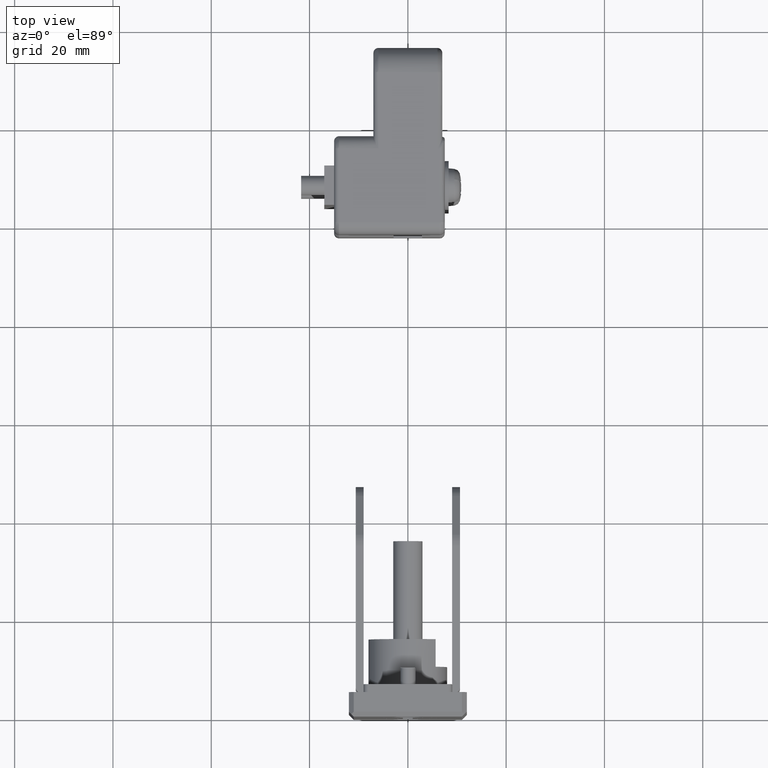
[diagram: clean part render]
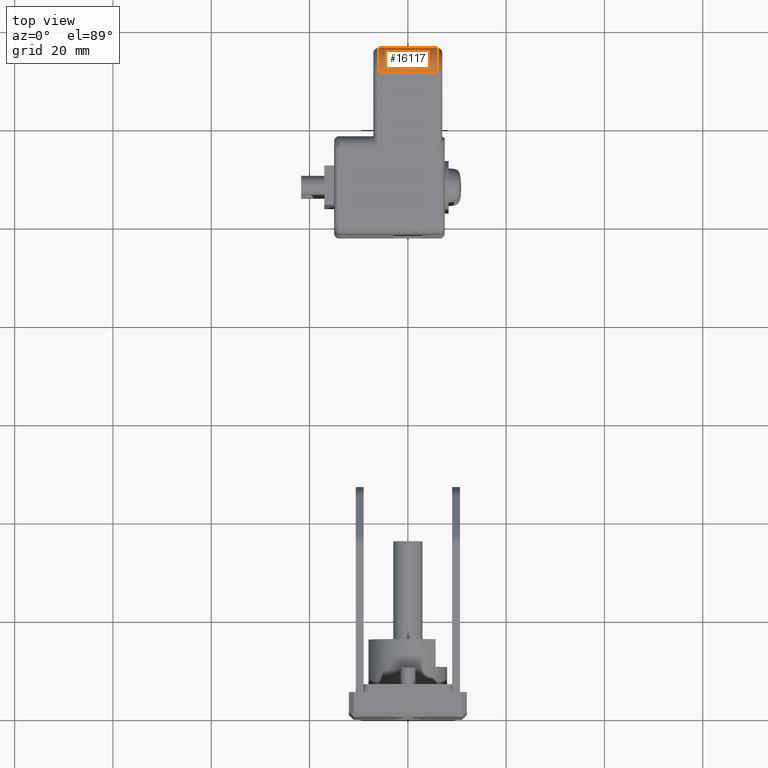
[diagram: same view with one face highlighted and labeled with its STEP entity id]
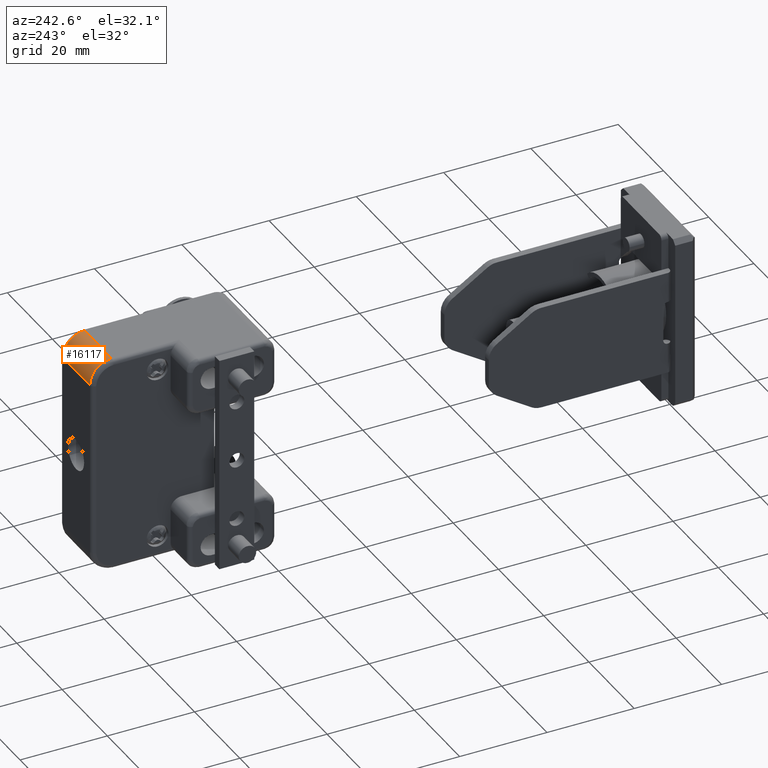
[diagram: same view with one face highlighted and labeled with its STEP entity id]
A machine part, top view. The second image highlights one B-rep face of the part: STEP entity #16117.
A second angle (auxiliary view) of the same face is appended — the face is thin or edge-on in the first view.
In plain terms, the highlighted face is a freeform B-spline surface patch.
Its self-contained STEP definition (entity closure, byte-faithful):
#14426=CARTESIAN_POINT('',(131.039635274685390,-6.0,25.0));
#14427=VERTEX_POINT('',#14426);
#14504=CARTESIAN_POINT('',(136.039635274685390,-6.0,20.0));
#14505=VERTEX_POINT('',#14504);
#14519=CARTESIAN_POINT('',(131.039635274685390,-6.0,25.0));
#14520=CARTESIAN_POINT('',(136.039635274685390,-6.0,25.0));
#14521=CARTESIAN_POINT('',(136.039635274685390,-6.0,20.0));
#14529=(BOUNDED_CURVE()B_SPLINE_CURVE(2,(#14519,#14520,#14521),.UNSPECIFIED.,.F.,.U.)CURVE()GEOMETRIC_REPRESENTATION_ITEM()QUASI_UNIFORM_CURVE()RATIONAL_B_SPLINE_CURVE((1.0,0.707106781186548,1.0))REPRESENTATION_ITEM(''));
#14530=EDGE_CURVE('',#14427,#14505,#14529,.T.);
#14874=CARTESIAN_POINT('',(136.039635274685390,6.0,20.0));
#14875=VERTEX_POINT('',#14874);
#14922=CARTESIAN_POINT('',(131.039635274685390,6.0,25.0));
#14923=VERTEX_POINT('',#14922);
#14937=CARTESIAN_POINT('',(136.039635274685390,6.0,20.0));
#14938=CARTESIAN_POINT('',(136.039635274685390,6.0,25.0));
#14939=CARTESIAN_POINT('',(131.039635274685390,6.0,25.0));
#14947=(BOUNDED_CURVE()B_SPLINE_CURVE(2,(#14937,#14938,#14939),.UNSPECIFIED.,.F.,.U.)CURVE()GEOMETRIC_REPRESENTATION_ITEM()QUASI_UNIFORM_CURVE()RATIONAL_B_SPLINE_CURVE((1.0,0.707106781186548,1.0))REPRESENTATION_ITEM(''));
#14948=EDGE_CURVE('',#14875,#14923,#14947,.T.);
#16089=CARTESIAN_POINT('',(130.996002597193500,6.300000000000001,24.999809615320860));
#16090=CARTESIAN_POINT('',(130.996002597193500,-6.307500000000003,24.999809615320860));
#16091=CARTESIAN_POINT('',(136.357641984744160,6.300000000000001,25.046599933397726));
#16092=CARTESIAN_POINT('',(136.357641984744160,-6.307500000000002,25.046599933397726));
#16093=CARTESIAN_POINT('',(136.030309266794800,6.300000000000001,19.694757302325709));
#16094=CARTESIAN_POINT('',(136.030309266794800,-6.307500000000003,19.694757302325709));
#16102=(BOUNDED_SURFACE()B_SPLINE_SURFACE(1,2,((#16089,#16091,#16093),(#16090,#16092,#16094)),.UNSPECIFIED.,.F.,.F.,.U.)B_SPLINE_SURFACE_WITH_KNOTS((2,2),(3,3),(0.0,12.607500000000000),(0.0,8.696247499218687),.UNSPECIFIED.)GEOMETRIC_REPRESENTATION_ITEM()RATIONAL_B_SPLINE_SURFACE(((1.0,0.681998360062499,1.0),(1.0,0.681998360062499,1.0)))REPRESENTATION_ITEM('')SURFACE());
#16103=CARTESIAN_POINT('',(131.039635274685390,-6.0,25.0));
#16104=CARTESIAN_POINT('',(131.039635274685390,6.0,25.0));
#16105=QUASI_UNIFORM_CURVE('',1,(#16103,#16104),.UNSPECIFIED.,.F.,.U.);
#16106=EDGE_CURVE('',#14427,#14923,#16105,.T.);
#16107=ORIENTED_EDGE('',*,*,#16106,.F.);
#16108=ORIENTED_EDGE('',*,*,#14530,.T.);
#16109=CARTESIAN_POINT('',(136.039635274685390,6.0,20.0));
#16110=CARTESIAN_POINT('',(136.039635274685390,-6.0,20.0));
#16111=QUASI_UNIFORM_CURVE('',1,(#16109,#16110),.UNSPECIFIED.,.F.,.U.);
#16112=EDGE_CURVE('',#14875,#14505,#16111,.T.);
#16113=ORIENTED_EDGE('',*,*,#16112,.F.);
#16114=ORIENTED_EDGE('',*,*,#14948,.T.);
#16115=EDGE_LOOP('',(#16107,#16108,#16113,#16114));
#16116=FACE_OUTER_BOUND('',#16115,.T.);
#16117=ADVANCED_FACE('',(#16116),#16102,.T.);